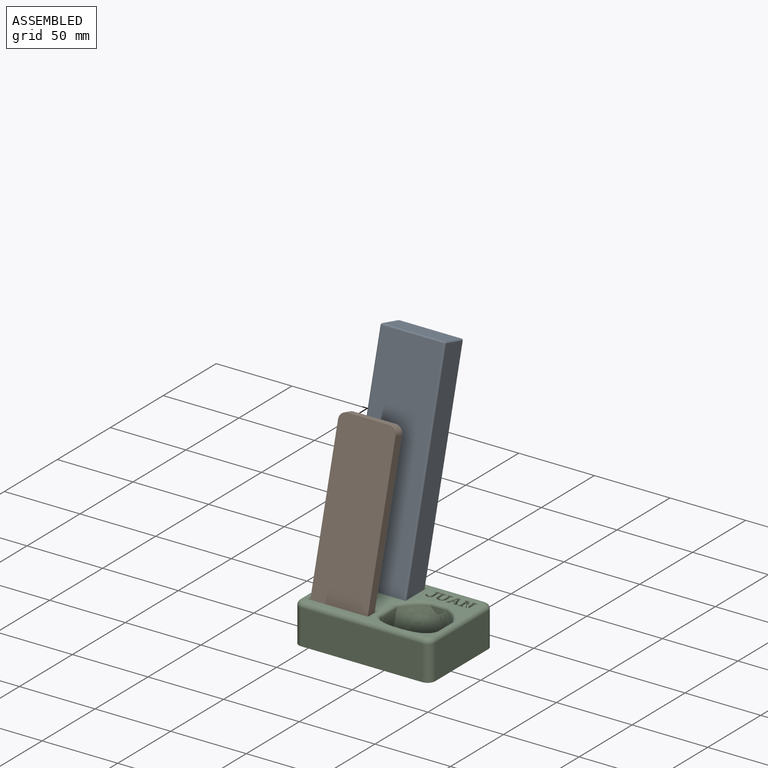
[diagram: assembled view]
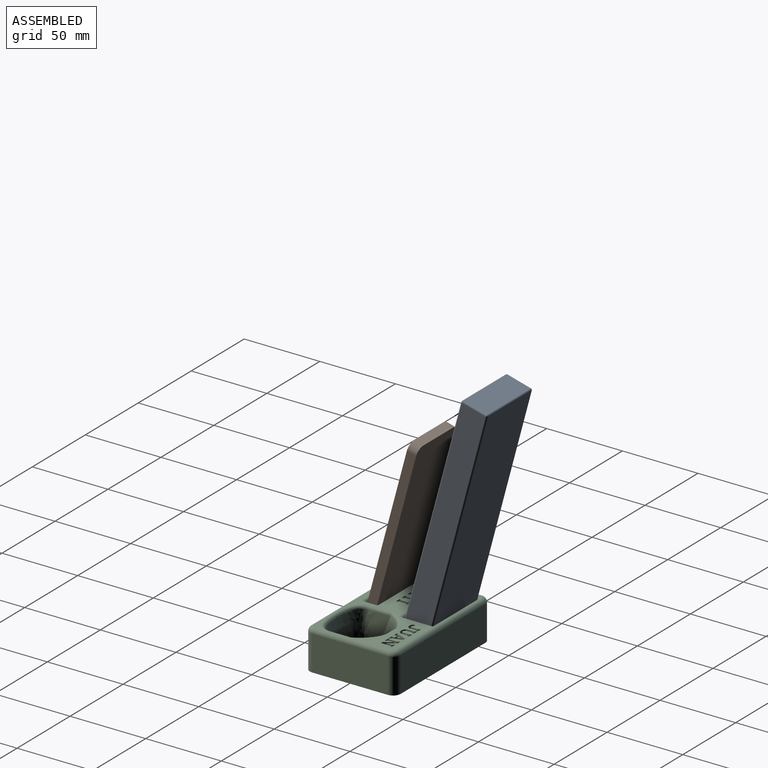
[diagram: assembled view, second angle]
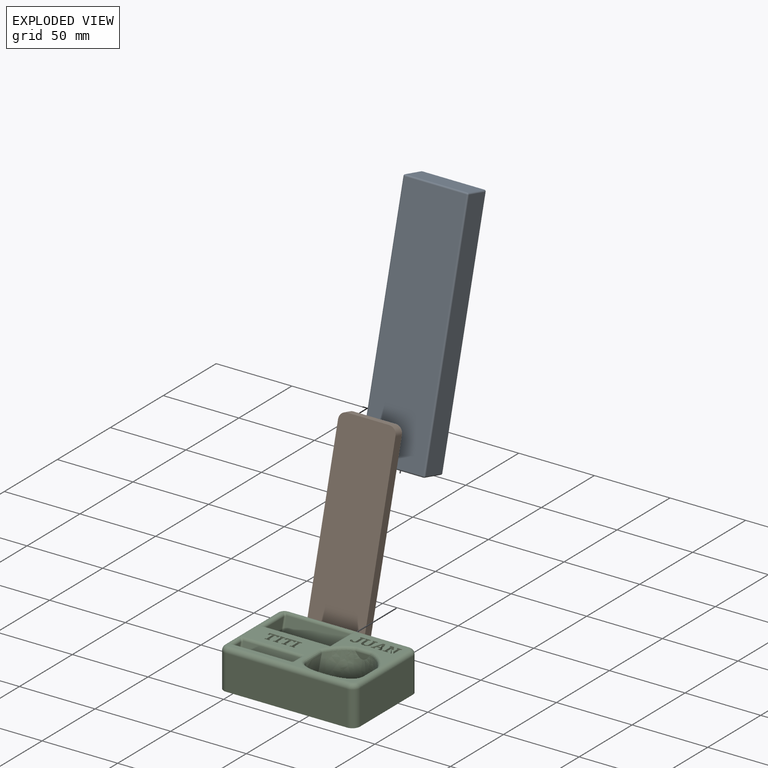
[diagram: exploded view]
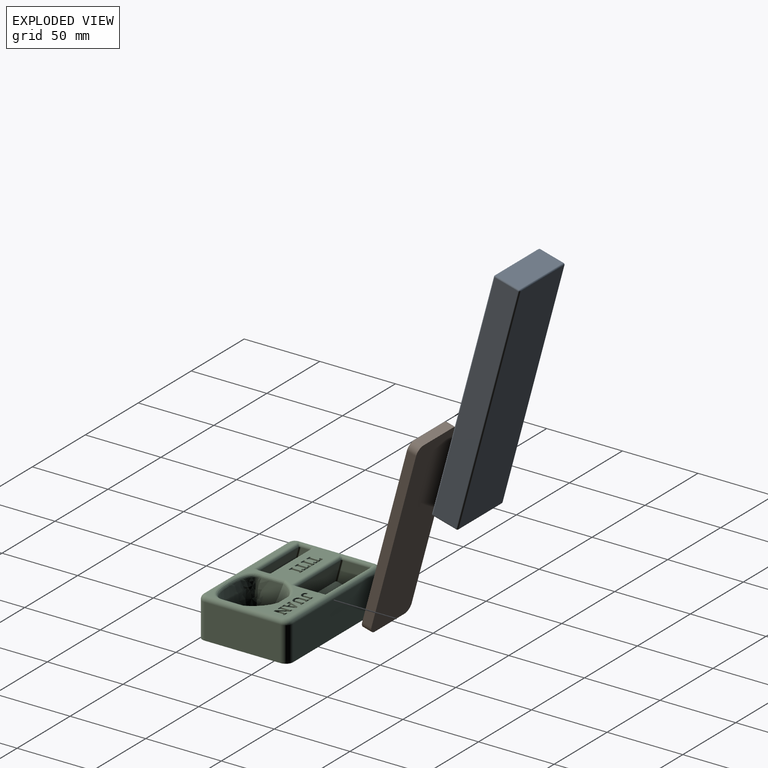
[diagram: exploded view, second angle]
ASSEMBLY  parts=3 mates=2
PART A: 26 faces, bbox 43x18x160 mm
  f0: plane 41x16mm, normal (0,0,1), area 656mm2, adj f14,f19,f22,f25
  f1: plane 158x16mm, normal (-1,0,0), area 2528mm2, adj f11,f20,f21,f25
  f2: plane 41x16mm, normal (0,0,-1), area 656mm2, adj f6,f10,f11,f12
  f3: plane 158x16mm, normal (1,0,0), area 2528mm2, adj f6,f9,f13,f14
  f4: plane 158x41mm, normal (0,-1,0), area 6478mm2, adj f9,f10,f19,f20
  f5: plane 158x41mm, normal (0,1,0), area 6478mm2, adj f12,f13,f21,f22
  f6: cylinder r=1mm len=16mm, axis (0,-1,0), area 25.1mm2, adj f2,f3,f7,f8
  f7: sphere r=1mm, area 1.6mm2, adj f6,f9,f10
  f8: sphere r=1mm, area 1.6mm2, adj f6,f12,f13
  f9: cylinder r=1mm len=158mm, axis (0,0,-1), area 248.2mm2, adj f3,f4,f7,f15
  f10: cylinder r=1mm len=41mm, axis (-1,0,0), area 64.4mm2, adj f2,f4,f7,f16
  f11: cylinder r=1mm len=16mm, axis (0,1,0), area 25.1mm2, adj f1,f2,f16,f17
  f12: cylinder r=1mm len=41mm, axis (1,0,0), area 64.4mm2, adj f2,f5,f8,f17
  f13: cylinder r=1mm len=158mm, axis (0,0,1), area 248.2mm2, adj f3,f5,f8,f18
  f14: cylinder r=1mm len=16mm, axis (0,1,0), area 25.1mm2, adj f0,f3,f15,f18
  f15: sphere r=1mm, area 1.6mm2, adj f9,f14,f19
  f16: sphere r=1mm, area 1.6mm2, adj f10,f11,f20
  f17: sphere r=1mm, area 1.6mm2, adj f11,f12,f21
  f18: sphere r=1mm, area 1.6mm2, adj f13,f14,f22
  f19: cylinder r=1mm len=41mm, axis (1,0,0), area 64.4mm2, adj f0,f4,f15,f23
  f20: cylinder r=1mm len=158mm, axis (0,0,1), area 248.2mm2, adj f1,f4,f16,f23
  f21: cylinder r=1mm len=158mm, axis (0,0,-1), area 248.2mm2, adj f1,f5,f17,f24
  f22: cylinder r=1mm len=41mm, axis (-1,0,0), area 64.4mm2, adj f0,f5,f18,f24
  f23: sphere r=1mm, area 1.6mm2, adj f19,f20,f25
  f24: sphere r=1mm, area 1.6mm2, adj f21,f22,f25
  f25: cylinder r=1mm len=16mm, axis (0,-1,0), area 25.1mm2, adj f0,f1,f23,f24
PART B: 10 faces, bbox 38x6.3x124 mm
  f0: plane 28x6.3mm, normal (0,0,1), area 176.4mm2, adj f4,f5,f6,f9
  f1: plane 114x6.3mm, normal (-1,0,0), area 718.2mm2, adj f4,f5,f6,f7
  f2: plane 28x6.3mm, normal (0,0,-1), area 176.4mm2, adj f4,f5,f7,f8
  f3: plane 114x6.3mm, normal (1,0,0), area 718.2mm2, adj f4,f5,f8,f9
  f4: plane 124x38mm, normal (0,-1,0), area 4690.5mm2, adj f0,f1,f2,f3,f6,f7,f8,f9
  f5: plane 124x38mm, normal (0,1,0), area 4690.5mm2, adj f0,f1,f2,f3,f6,f7,f8,f9
  f6: cylinder r=5mm len=6.3mm, axis (0,-1,0), area 49.5mm2, adj f0,f1,f4,f5
  f7: cylinder r=5mm len=6.3mm, axis (0,1,0), area 49.5mm2, adj f1,f2,f4,f5
  f8: cylinder r=5mm len=6.3mm, axis (0,-1,0), area 49.5mm2, adj f2,f3,f4,f5
  f9: cylinder r=5mm len=6.3mm, axis (0,1,0), area 49.5mm2, adj f0,f3,f4,f5
PART C: 219 faces, bbox 95.7x65.7x36.7 mm
  f0: plane 36.51x27.93mm, normal (0,0,1), area 526mm2, adj f29,f31,f33,f40,f42,f44,f45,f133
  f1: plane 84.01x30.94mm, normal (0,0,1), area 856.7mm2, adj f26,f28,f30,f32,f33,f35,f36,f37
  f2: bspline ~45.58x30mm, area 1199.5mm2, adj f3,f4,f9,f11,f38,f39,f40,f42
  f3: bspline ~30x23.94mm, area 661.2mm2, adj f2,f4,f9,f43
  f4: bspline ~30.3x23.94mm, area 661mm2, adj f2,f3,f9,f39,f41
  f5: plane 50x23mm, normal (-1,0,0), area 1150mm2, adj f10,f22,f23,f26
  f6: plane 80x23mm, normal (0,-1,0), area 1840mm2, adj f10,f23,f24,f30
  f7: plane 80x23mm, normal (0,1,0), area 1840mm2, adj f10,f22,f25,f29
  f8: plane 50x23mm, normal (1,0,0), area 1150mm2, adj f10,f24,f25,f33
  f9: plane 40.74x36.73mm, normal (0,0,1), area 858.8mm2, adj f2,f3,f4
  f10: plane 90x60mm, normal (0,0,-1), area 5378.5mm2, adj f5,f6,f7,f8,f22,f23,f24,f25
  f11: plane 9.28x3.68mm, normal (0,-1,0), area 22.6mm2, adj f2,f42
  f12: plane 21.06x18.03mm, normal (1,0,0), area 275.7mm2, adj f16,f48,f49,f50,f58
  f13: plane 41.5x12.9mm, normal (0,0.97,-0.26), area 554.3mm2, adj f16,f46,f49,f52
  f14: plane 21.06x18.03mm, normal (-1,0,0), area 275.7mm2, adj f16,f45,f52,f53,f55
  f15: plane 41.7x18.8mm, normal (0,-0.97,0.26), area 807.9mm2, adj f16,f47,f55,f56,f58,f59
  f16: plane 43.5x18.16mm, normal (0,0.26,0.97), area 816.9mm2, adj f12,f13,f14,f15,f49,f52,f55,f58
  f17: plane 37.2x18.8mm, normal (0,-0.97,0.26), area 720.3mm2, adj f21,f35,f61,f62,f70,f71
  f18: plane 18.03x10.14mm, normal (-1,0,0), area 98.6mm2, adj f21,f37,f61,f64,f65
  f19: plane 37x15.83mm, normal (0,0.97,-0.26), area 606.2mm2, adj f21,f36,f64,f67
  f20: plane 18.03x10.14mm, normal (1,0,0), area 98.6mm2, adj f21,f34,f67,f68,f70
  f21: plane 39x7.24mm, normal (0,0.26,0.97), area 291.6mm2, adj f17,f18,f19,f20,f61,f64,f67,f70
  f22: cylinder r=5mm len=23mm, axis (0,0,1), area 180.6mm2, adj f5,f7,f10,f27
  f23: cylinder r=5mm len=23mm, axis (0,0,-1), area 180.6mm2, adj f5,f6,f10,f28
  f24: cylinder r=5mm len=23mm, axis (0,0,1), area 180.6mm2, adj f6,f8,f10,f32
  f25: cylinder r=5mm len=23mm, axis (0,0,-1), area 180.6mm2, adj f7,f8,f10,f31
  f26: cylinder r=3mm len=50mm, axis (0,1,0), area 232.4mm2, adj f1,f5,f27,f28,f34,f35,f36,f48
  f27: torus R=2mm, axis (0,0,1), area 27.8mm2, adj f22,f26,f29,f47,f48,f60
  f28: torus R=2mm, axis (0,0,1), area 28.9mm2, adj f1,f23,f26,f30
  f29: cylinder r=3mm len=80mm, axis (1,0,0), area 363.6mm2, adj f0,f7,f27,f31,f45,f47,f57
  f30: cylinder r=3mm len=80mm, axis (-1,0,0), area 377mm2, adj f1,f6,f28,f32
  f31: torus R=2mm, axis (0,0,1), area 28.9mm2, adj f0,f25,f29,f33
  f32: torus R=2mm, axis (0,0,1), area 28.9mm2, adj f1,f24,f30,f33
  f33: cylinder r=3mm len=50mm, axis (0,-1,0), area 220.5mm2, adj f0,f1,f8,f31,f32,f38,f39
  f34: cylinder r=2mm len=11.23mm, axis (0,1,0), area 22.8mm2, adj f20,f26,f69,f71,f72
  f35: cylinder r=2mm len=42.72mm, axis (1,0,0), area 103.6mm2, adj f1,f17,f26,f63,f72
  f36: cylinder r=2mm len=42.72mm, axis (-1,0,0), area 142.4mm2, adj f1,f19,f26,f65,f66,f68,f69
  f37: cylinder r=2mm len=11.91mm, axis (0,-1,0), area 25.4mm2, adj f1,f18,f62,f63,f66
  f38: bspline ~3.32x2.49mm, area 1.6mm2, adj f2,f33,f39,f40
  f39: bspline ~21.14x2.95mm, area 59.6mm2, adj f2,f4,f33,f38,f41
  f40: bspline ~17.59x16.58mm, area 54.5mm2, adj f0,f2,f38,f42
  f41: bspline ~27.84x9.48mm, area 66.4mm2, adj f1,f4,f39,f43
  f42: cylinder r=2mm len=10.05mm, axis (1,0,0), area 30.6mm2, adj f0,f2,f11,f40,f44
  f43: bspline ~33.94x29.27mm, area 116.5mm2, adj f1,f2,f3,f41,f44
  f44: bspline ~18.53x18.29mm, area 55.7mm2, adj f0,f1,f2,f42,f43,f45,f46,f54
  f45: cylinder r=2mm len=23.08mm, axis (0,-1,0), area 62mm2, adj f0,f14,f29,f44,f54,f56,f57
  f46: cylinder r=2mm len=47.27mm, axis (-1,0,0), area 158.9mm2, adj f1,f13,f44,f50,f51,f53,f54
  f47: cylinder r=2mm len=46.51mm, axis (1,0,0), area 104.9mm2, adj f15,f27,f29,f57,f60
  f48: cylinder r=2mm len=22.99mm, axis (0,1,0), area 61.6mm2, adj f12,f26,f27,f51,f59,f60
  f49: cylinder r=1mm len=13.16mm, axis (0,0.26,0.97), area 21mm2, adj f12,f13,f16,f50
  f50: torus R=3mm, axis (1,0,0), area 1mm2, adj f12,f46,f49,f51
  f51: bspline ~3x3mm, area 2.1mm2, adj f46,f48,f50
  f52: cylinder r=1mm len=13.16mm, axis (0,-0.26,-0.97), area 21mm2, adj f13,f14,f16,f53
  f53: torus R=3mm, axis (1,0,0), area 1mm2, adj f14,f46,f52,f54
  f54: bspline ~3x3mm, area 3.6mm2, adj f44,f45,f46,f53
  f55: cylinder r=1mm len=18.28mm, axis (0,0.26,0.97), area 29.3mm2, adj f14,f15,f16,f56
  f56: bspline ~1.17x1.07mm, area 1mm2, adj f15,f45,f55,f57
  f57: bspline ~2.83x2.83mm, area 2.9mm2, adj f29,f45,f47,f56
  f58: cylinder r=1mm len=18.28mm, axis (0,-0.26,-0.97), area 29.3mm2, adj f12,f15,f16,f59
  f59: bspline ~1.17x1.07mm, area 1mm2, adj f15,f48,f58,f60
  f60: bspline ~2.64x2.64mm, area 2.8mm2, adj f27,f47,f48,f59
  f61: cylinder r=1mm len=18.28mm, axis (0,0.26,0.97), area 29.3mm2, adj f17,f18,f21,f62
  f62: bspline ~1.17x1.07mm, area 1mm2, adj f17,f37,f61,f63
  f63: bspline ~2.96x2.96mm, area 1.8mm2, adj f35,f37,f62
  f64: cylinder r=1mm len=16.08mm, axis (0,-0.26,-0.97), area 25.7mm2, adj f18,f19,f21,f65
  f65: torus R=3mm, axis (-1,0,0), area 1mm2, adj f18,f36,f64,f66
  f66: bspline ~3x3mm, area 2.1mm2, adj f36,f37,f65
  f67: cylinder r=1mm len=16.08mm, axis (0,0.26,0.97), area 25.7mm2, adj f19,f20,f21,f68
  f68: torus R=3mm, axis (-1,0,0), area 1mm2, adj f20,f36,f67,f69
  f69: bspline ~3x3mm, area 3.6mm2, adj f26,f34,f36,f68
  f70: cylinder r=1mm len=18.28mm, axis (0,-0.26,-0.97), area 29.3mm2, adj f17,f20,f21,f71
  f71: bspline ~1.17x1.07mm, area 1mm2, adj f17,f34,f70,f72
  f72: bspline ~2.96x2.96mm, area 2.9mm2, adj f26,f34,f35,f71
  f73: plane 2x0.93mm, normal (1,0,0), area 1.9mm2, adj f1,f74,f84,f85
  f74: plane 2x0.82mm, normal (0.19,0.98,0), area 1.7mm2, adj f1,f73,f75,f85
  f75: plane 5.53x2mm, normal (1,0,0), area 11.1mm2, adj f1,f74,f76,f85
  f76: plane 2x0.82mm, normal (0.19,-0.98,0), area 1.7mm2, adj f1,f75,f77,f85
  f77: plane 2x0.93mm, normal (1,0,0), area 1.9mm2, adj f1,f76,f78,f85
  f78: plane 3.19x2mm, normal (0,1,0), area 6.4mm2, adj f1,f77,f79,f85
  f79: plane 2x0.93mm, normal (-1,0,0), area 1.9mm2, adj f1,f78,f80,f85
  f80: plane 2x0.82mm, normal (-0.19,-0.98,0), area 1.7mm2, adj f1,f79,f81,f85
  f81: plane 5.53x2mm, normal (-1,0,0), area 11.1mm2, adj f1,f80,f82,f85
  f82: plane 2x0.82mm, normal (-0.19,0.98,0), area 1.7mm2, adj f1,f81,f83,f85
  f83: plane 2x0.93mm, normal (-1,0,0), area 1.9mm2, adj f1,f82,f84,f85
  f84: plane 3.19x2mm, normal (0,-1,0), area 6.4mm2, adj f1,f73,f83,f85
  f85: plane 7.7x3.19mm, normal (0,0,1), area 15.2mm2, adj f73,f74,f75,f76,f77,f78,f79,f80
  f86: plane 2.05x2mm, normal (-1,0,0), area 4.1mm2, adj f1,f87,f101,f102
  f87: plane 6.87x2mm, normal (0,-1,0), area 13.7mm2, adj f1,f86,f88,f102
  f88: plane 2.05x2mm, normal (1,0,0), area 4.1mm2, adj f1,f87,f89,f102
  f89: plane 2x1.18mm, normal (0,1,0), area 2.4mm2, adj f1,f88,f90,f102
  f90: plane 2x0.86mm, normal (-1,0.07,0), area 1.7mm2, adj f1,f89,f91,f102
  f91: plane 2x1.41mm, normal (0,1,0), area 2.8mm2, adj f1,f90,f92,f102
  f92: plane 5.43x2mm, normal (1,0,0), area 10.9mm2, adj f1,f91,f93,f102
  f93: plane 2x0.83mm, normal (0.19,-0.98,0), area 1.7mm2, adj f1,f92,f94,f102
  f94: plane 2x0.93mm, normal (1,0,0), area 1.9mm2, adj f1,f93,f95,f102
  f95: plane 3.2x2mm, normal (0,1,0), area 6.4mm2, adj f1,f94,f96,f102
  f96: plane 2x0.93mm, normal (-1,0,0), area 1.9mm2, adj f1,f95,f97,f102
  f97: plane 2x0.83mm, normal (-0.19,-0.98,0), area 1.7mm2, adj f1,f96,f98,f102
  f98: plane 5.43x2mm, normal (-1,0,0), area 10.9mm2, adj f1,f97,f99,f102
  f99: plane 2x1.42mm, normal (0,1,0), area 2.8mm2, adj f1,f98,f100,f102
  f100: plane 2x0.86mm, normal (1,0.07,0), area 1.7mm2, adj f1,f99,f101,f102
  f101: plane 2x1.19mm, normal (0,1,0), area 2.4mm2, adj f1,f86,f100,f102
  f102: plane 7.7x6.87mm, normal (0,0,1), area 22mm2, adj f86,f87,f88,f89,f90,f91,f92,f93
  f103: plane 2x0.93mm, normal (1,0,0), area 1.9mm2, adj f1,f104,f114,f115
  f104: plane 2x0.82mm, normal (0.19,0.98,0), area 1.7mm2, adj f1,f103,f105,f115
  f105: plane 5.53x2mm, normal (1,0,0), area 11.1mm2, adj f1,f104,f106,f115
  f106: plane 2x0.82mm, normal (0.19,-0.98,0), area 1.7mm2, adj f1,f105,f107,f115
  f107: plane 2x0.93mm, normal (1,0,0), area 1.9mm2, adj f1,f106,f108,f115
  f108: plane 3.19x2mm, normal (0,1,0), area 6.4mm2, adj f1,f107,f109,f115
  f109: plane 2x0.93mm, normal (-1,0,0), area 1.9mm2, adj f1,f108,f110,f115
  f110: plane 2x0.82mm, normal (-0.19,-0.98,0), area 1.7mm2, adj f1,f109,f111,f115
  f111: plane 5.53x2mm, normal (-1,0,0), area 11.1mm2, adj f1,f110,f112,f115
  f112: plane 2x0.82mm, normal (-0.19,0.98,0), area 1.7mm2, adj f1,f111,f113,f115
  f113: plane 2x0.93mm, normal (-1,0,0), area 1.9mm2, adj f1,f112,f114,f115
  f114: plane 3.19x2mm, normal (0,-1,0), area 6.4mm2, adj f1,f103,f113,f115
  f115: plane 7.7x3.19mm, normal (0,0,1), area 15.2mm2, adj f103,f104,f105,f106,f107,f108,f109,f110
  f116: plane 2.05x2mm, normal (-1,0,0), area 4.1mm2, adj f1,f117,f131,f132
  f117: plane 6.87x2mm, normal (0,-1,0), area 13.7mm2, adj f1,f116,f118,f132
  f118: plane 2.05x2mm, normal (1,0,0), area 4.1mm2, adj f1,f117,f119,f132
  f119: plane 2x1.18mm, normal (0,1,0), area 2.4mm2, adj f1,f118,f120,f132
  f120: plane 2x0.86mm, normal (-1,0.07,0), area 1.7mm2, adj f1,f119,f121,f132
  f121: plane 2x1.41mm, normal (0,1,0), area 2.8mm2, adj f1,f120,f122,f132
  f122: plane 5.43x2mm, normal (1,0,0), area 10.9mm2, adj f1,f121,f123,f132
  f123: plane 2x0.83mm, normal (0.19,-0.98,0), area 1.7mm2, adj f1,f122,f124,f132
  f124: plane 2x0.93mm, normal (1,0,0), area 1.9mm2, adj f1,f123,f125,f132
  f125: plane 3.2x2mm, normal (0,1,0), area 6.4mm2, adj f1,f124,f126,f132
  f126: plane 2x0.93mm, normal (-1,0,0), area 1.9mm2, adj f1,f125,f127,f132
  f127: plane 2x0.83mm, normal (-0.19,-0.98,0), area 1.7mm2, adj f1,f126,f128,f132
  f128: plane 5.43x2mm, normal (-1,0,0), area 10.9mm2, adj f1,f127,f129,f132
  f129: plane 2x1.42mm, normal (0,1,0), area 2.8mm2, adj f1,f128,f130,f132
  f130: plane 2x0.86mm, normal (1,0.07,0), area 1.7mm2, adj f1,f129,f131,f132
  f131: plane 2x1.19mm, normal (0,1,0), area 2.4mm2, adj f1,f116,f130,f132
  f132: plane 7.7x6.87mm, normal (0,0,1), area 22mm2, adj f116,f117,f118,f119,f120,f121,f122,f123
  f133: plane 2x0.93mm, normal (-1,0,0), area 1.9mm2, adj f0,f134,f154,f155
  f134: plane 3.19x2mm, normal (0,-1,0), area 6.4mm2, adj f0,f133,f135,f155
  f135: plane 2x0.93mm, normal (1,0,0), area 1.9mm2, adj f0,f134,f136,f155
  f136: plane 2x0.82mm, normal (0.19,0.98,0), area 1.7mm2, adj f0,f135,f137,f155
  f137: plane 4.02x2mm, normal (1,0,0), area 8mm2, adj f0,f136,f138,f155
  f138: extruded ~2x2mm, area 4.5mm2, adj f0,f137,f139,f155
  f139: extruded ~2.23x2mm, area 4.8mm2, adj f0,f138,f140,f155
  f140: extruded ~2.24x2mm, area 4.8mm2, adj f0,f139,f141,f155
  f141: extruded ~2x2mm, area 4.5mm2, adj f0,f140,f142,f155
  f142: plane 4.02x2mm, normal (-1,0,0), area 8mm2, adj f0,f141,f143,f155
  f143: plane 2x0.83mm, normal (-0.19,0.98,0), area 1.7mm2, adj f0,f142,f144,f155
  f144: plane 2x0.93mm, normal (-1,0,0), area 1.9mm2, adj f0,f143,f145,f155
  f145: plane 3.19x2mm, normal (0,-1,0), area 6.4mm2, adj f0,f144,f146,f155
  f146: plane 2x0.93mm, normal (1,0,0), area 1.9mm2, adj f0,f145,f147,f155
  f147: plane 2x0.82mm, normal (0.19,0.98,0), area 1.7mm2, adj f0,f146,f148,f155
  f148: plane 4.02x2mm, normal (1,0,0), area 8mm2, adj f0,f147,f149,f155
  f149: extruded ~2x1.14mm, area 2.5mm2, adj f0,f148,f150,f155
  f150: extruded ~2x1.14mm, area 2.5mm2, adj f0,f149,f151,f155
  f151: extruded ~2x1.12mm, area 2.4mm2, adj f0,f150,f152,f155
  f152: extruded ~2x1.14mm, area 2.5mm2, adj f0,f151,f153,f155
  f153: plane 4.02x2mm, normal (-1,0,0), area 8mm2, adj f0,f152,f154,f155
  f154: plane 2x0.82mm, normal (-0.19,0.98,0), area 1.7mm2, adj f0,f133,f153,f155
  f155: plane 7.82x7.81mm, normal (0,0,1), area 28.8mm2, adj f133,f134,f135,f136,f137,f138,f139,f140
  f156: plane 2x0.93mm, normal (-1,0,0), area 1.9mm2, adj f0,f157,f177,f178
  f157: plane 3.19x2mm, normal (0,-1,0), area 6.4mm2, adj f0,f156,f158,f178
  f158: plane 2x0.93mm, normal (1,0,0), area 1.9mm2, adj f0,f157,f159,f178
  f159: plane 2x0.82mm, normal (0.19,0.98,0), area 1.7mm2, adj f0,f158,f160,f178
  f160: plane 4.09x2mm, normal (1,0,0), area 8.2mm2, adj f0,f159,f161,f178
  f161: plane 2x0.03mm, normal (0.16,-0.99,0), area 0.1mm2, adj f0,f160,f162,f178
  f162: plane 5.18x3.11mm, normal (-0.86,-0.51,0), area 12.1mm2, adj f0,f161,f163,f178
  f163: plane 2.36x2mm, normal (0,-1,0), area 4.7mm2, adj f0,f162,f164,f178
  f164: plane 2x0.93mm, normal (1,0,0), area 1.9mm2, adj f0,f163,f165,f178
  f165: plane 2x0.82mm, normal (0.19,0.98,0), area 1.7mm2, adj f0,f164,f166,f178
  f166: plane 5.53x2mm, normal (1,0,0), area 11.1mm2, adj f0,f165,f167,f178
  f167: plane 2x0.82mm, normal (0.19,-0.98,0), area 1.7mm2, adj f0,f166,f168,f178
  f168: plane 2x0.93mm, normal (1,0,0), area 1.9mm2, adj f0,f167,f169,f178
  f169: plane 3.19x2mm, normal (0,1,0), area 6.4mm2, adj f0,f168,f170,f178
  f170: plane 2x0.93mm, normal (-1,0,0), area 1.9mm2, adj f0,f169,f171,f178
  f171: plane 2x0.82mm, normal (-0.19,-0.98,0), area 1.7mm2, adj f0,f170,f172,f178
  f172: plane 4.09x2mm, normal (-1,0,0), area 8.2mm2, adj f0,f171,f173,f178
  f173: plane 2x0.03mm, normal (-0.21,0.98,0), area 0.1mm2, adj f0,f172,f174,f178
  f174: plane 5.18x3.11mm, normal (0.86,0.51,0), area 12.1mm2, adj f0,f173,f175,f178
  f175: plane 2x1.54mm, normal (0,1,0), area 3.1mm2, adj f0,f174,f176,f178
  f176: plane 6.61x2mm, normal (-1,0,0), area 13.2mm2, adj f0,f175,f177,f178
  f177: plane 2x0.82mm, normal (-0.19,0.98,0), area 1.7mm2, adj f0,f156,f176,f178
  f178: plane 7.87x7.7mm, normal (0,0,1), area 35.7mm2, adj f156,f157,f158,f159,f160,f161,f162,f163
  f179: plane 2x1.77mm, normal (0,-1,0), area 3.5mm2, adj f180,f198,f199,f218
  f180: plane 2.71x2mm, normal (-0.95,0.3,0), area 5.7mm2, adj f179,f181,f199,f218
  f181: plane 2x0.03mm, normal (0,1,0), area 0.1mm2, adj f180,f198,f199,f218
  f182: plane 2x0.55mm, normal (0.14,-0.99,0), area 1.1mm2, adj f0,f183,f197,f199
  f183: plane 2x0.93mm, normal (1,0,0), area 1.9mm2, adj f0,f182,f184,f199
  f184: plane 2.62x2mm, normal (0,1,0), area 5.2mm2, adj f0,f183,f185,f199
  f185: plane 2x0.93mm, normal (-1,0,0), area 1.9mm2, adj f0,f184,f186,f199
  f186: plane 2x0.53mm, normal (-0.18,-0.98,0), area 1.1mm2, adj f0,f185,f187,f199
  f187: plane 2x1.06mm, normal (-0.95,0.3,0), area 2.2mm2, adj f0,f186,f188,f199
  f188: plane 2.5x2mm, normal (0,1,0), area 5mm2, adj f0,f187,f189,f199
  f189: plane 2x1.06mm, normal (0.95,0.3,0), area 2.2mm2, adj f0,f188,f190,f199
  f190: plane 2x0.54mm, normal (0.17,-0.98,0), area 1.1mm2, adj f0,f189,f191,f199
  f191: plane 2x0.93mm, normal (1,0,0), area 1.9mm2, adj f0,f190,f192,f199
  f192: plane 2.62x2mm, normal (0,1,0), area 5.2mm2, adj f0,f191,f193,f199
  f193: plane 2x0.93mm, normal (-1,0,0), area 1.9mm2, adj f0,f192,f194,f199
  f194: plane 2x0.55mm, normal (-0.14,-0.99,0), area 1.1mm2, adj f0,f193,f195,f199
  f195: plane 6.7x2.33mm, normal (-0.94,-0.33,0), area 14.2mm2, adj f0,f194,f196,f199
  f196: plane 2x1.58mm, normal (0,-1,0), area 3.2mm2, adj f0,f195,f197,f199
  f197: plane 6.7x2.34mm, normal (0.94,-0.33,0), area 14.2mm2, adj f0,f182,f196,f199
  f198: plane 2.71x2mm, normal (0.95,0.3,0), area 5.7mm2, adj f179,f181,f199,f218
  f199: plane 7.7x7.35mm, normal (0,0,1), area 25.9mm2, adj f179,f180,f181,f182,f183,f184,f185,f186
  f200: plane 2x0.93mm, normal (-1,0,0), area 1.9mm2, adj f0,f201,f216,f217
  f201: plane 3.19x2mm, normal (0,-1,0), area 6.4mm2, adj f0,f200,f202,f217
  f202: plane 2x0.93mm, normal (1,0,0), area 1.9mm2, adj f0,f201,f203,f217
  f203: plane 2x0.83mm, normal (0.19,0.98,0), area 1.7mm2, adj f0,f202,f204,f217
  f204: plane 4.3x2mm, normal (1,0,0), area 8.6mm2, adj f0,f203,f205,f217
  f205: extruded ~2x0.91mm, area 2mm2, adj f0,f204,f206,f217
  f206: extruded ~2x0.73mm, area 1.6mm2, adj f0,f205,f207,f217
  f207: extruded ~2x0.78mm, area 1.7mm2, adj f0,f206,f208,f217
  f208: extruded ~2x0.89mm, area 1.9mm2, adj f0,f207,f209,f217
  f209: plane 2x1.5mm, normal (0,-1,0), area 3mm2, adj f0,f208,f210,f217
  f210: plane 2x0.03mm, normal (0.94,-0.35,0), area 0.1mm2, adj f0,f209,f211,f217
  f211: extruded ~2x1.73mm, area 3.9mm2, adj f0,f210,f212,f217
  f212: extruded ~2x1.91mm, area 4.1mm2, adj f0,f211,f213,f217
  f213: extruded ~2x1.84mm, area 4mm2, adj f0,f212,f214,f217
  f214: extruded ~2x1.77mm, area 4mm2, adj f0,f213,f215,f217
  f215: plane 4.3x2mm, normal (-1,0,0), area 8.6mm2, adj f0,f214,f216,f217
  f216: plane 2x0.83mm, normal (-0.19,0.98,0), area 1.7mm2, adj f0,f200,f215,f217
  f217: plane 7.81x6mm, normal (0,0,1), area 18mm2, adj f200,f201,f202,f203,f204,f205,f206,f207
  f218: plane 2.71x1.77mm, normal (0,0,1), area 2.4mm2, adj f179,f180,f181,f198
PLACE A rot(axis=(-1,0,0),15deg) t=(-28.83,45.03,85.23)mm
PLACE B rot(axis=(-1,0,0),15deg) t=(-31.58,0.18,67.9)mm
PLACE C t=(11.42,-3.86,3.14)mm fixed
MATE fastened B.f2 <-> C.f21  axis (0,-0.26,-0.97) through (-31.58,-18.91,8.83)mm
MATE fastened A.f2 <-> C.f16  axis (0,-0.26,-0.97) through (-28.83,15.63,10.29)mm
